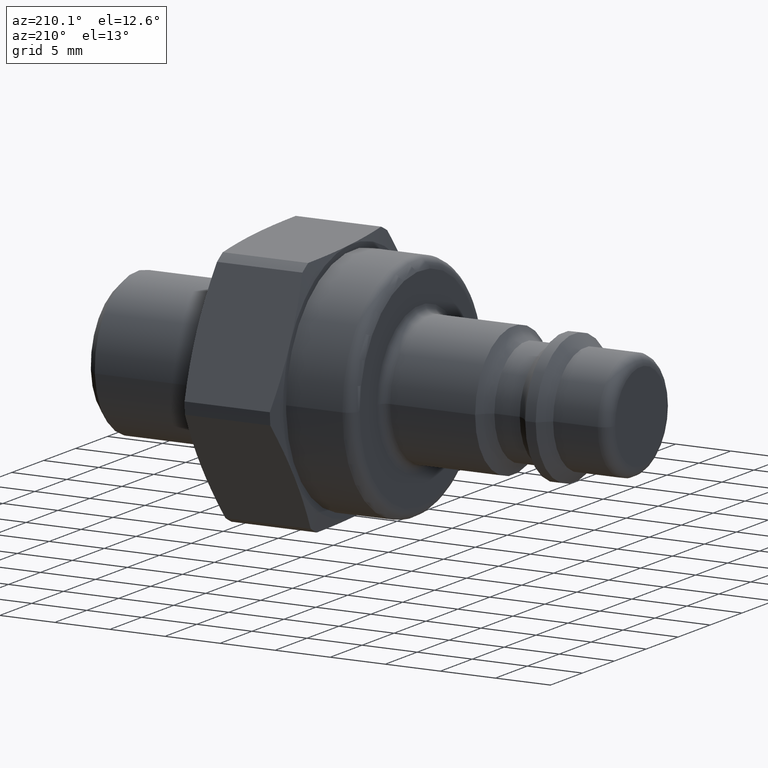
[diagram: clean part render]
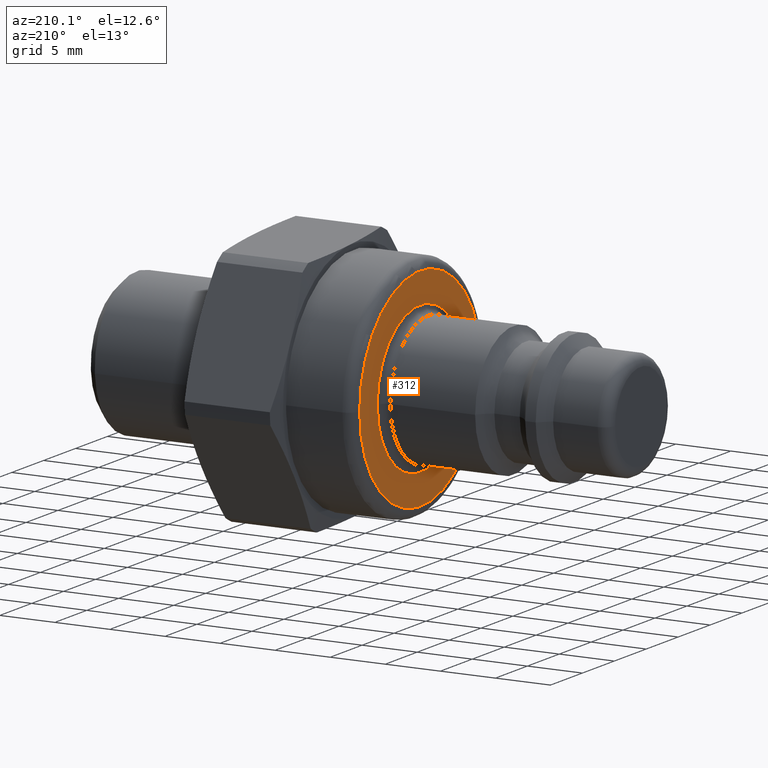
[diagram: same view with one face highlighted and labeled with its STEP entity id]
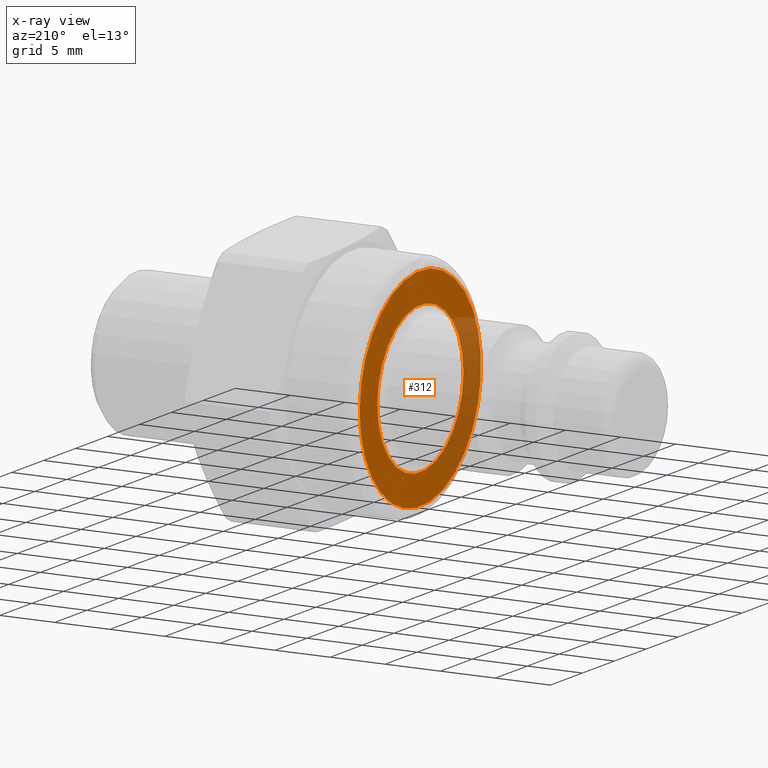
[diagram: x-ray of the same camera — body ghosted, the highlighted face saturated]
A machine part, auxiliary view. The second image highlights one B-rep face of the part: STEP entity #312.
The next image is the same camera in x-ray: the body ghosted, the highlighted face saturated — about 26% of this face is hidden behind the body in this view.
In plain terms, the highlighted planar face has unit normal (-1, 0, 0).
Its self-contained STEP definition (entity closure, byte-faithful):
#258=CARTESIAN_POINT('',(20.0,9.500000000000000,0.0));
#259=VERTEX_POINT('',#258);
#260=CARTESIAN_POINT('',(20.0,0.0,0.0));
#261=DIRECTION('',(1.0,0.0,0.0));
#262=DIRECTION('',(0.0,-1.0,0.0));
#263=AXIS2_PLACEMENT_3D('',#260,#261,#262);
#264=CIRCLE('',#263,9.500000000000000);
#265=EDGE_CURVE('',#259,#259,#264,.T.);
#293=CARTESIAN_POINT('',(20.0,8.250000000000002,0.0));
#294=DIRECTION('',(-1.0,0.0,0.0));
#295=DIRECTION('',(0.0,0.0,1.0));
#296=AXIS2_PLACEMENT_3D('',#293,#294,#295);
#297=PLANE('',#296);
#298=ORIENTED_EDGE('',*,*,#265,.F.);
#299=EDGE_LOOP('',(#298));
#300=FACE_OUTER_BOUND('',#299,.T.);
#301=CARTESIAN_POINT('',(20.0,6.750000000000000,-1.653273E-015));
#302=VERTEX_POINT('',#301);
#303=CARTESIAN_POINT('',(20.0,0.0,0.0));
#304=DIRECTION('',(-1.0,0.0,0.0));
#305=DIRECTION('',(0.0,-1.0,0.0));
#306=AXIS2_PLACEMENT_3D('',#303,#304,#305);
#307=CIRCLE('',#306,6.750000000000000);
#308=EDGE_CURVE('',#302,#302,#307,.T.);
#309=ORIENTED_EDGE('',*,*,#308,.F.);
#310=EDGE_LOOP('',(#309));
#311=FACE_BOUND('',#310,.T.);
#312=ADVANCED_FACE('',(#300,#311),#297,.T.);